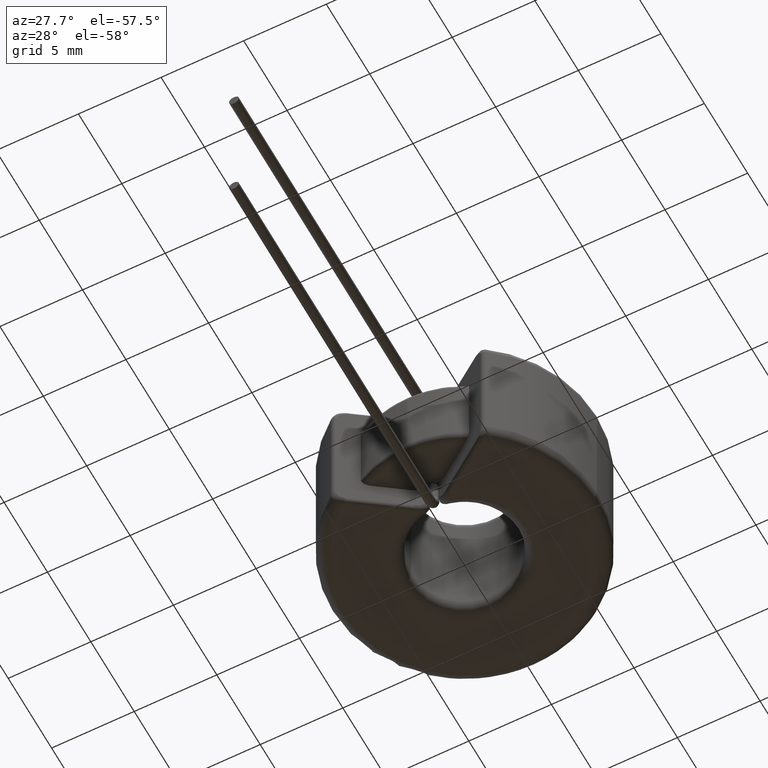
[diagram: clean part render]
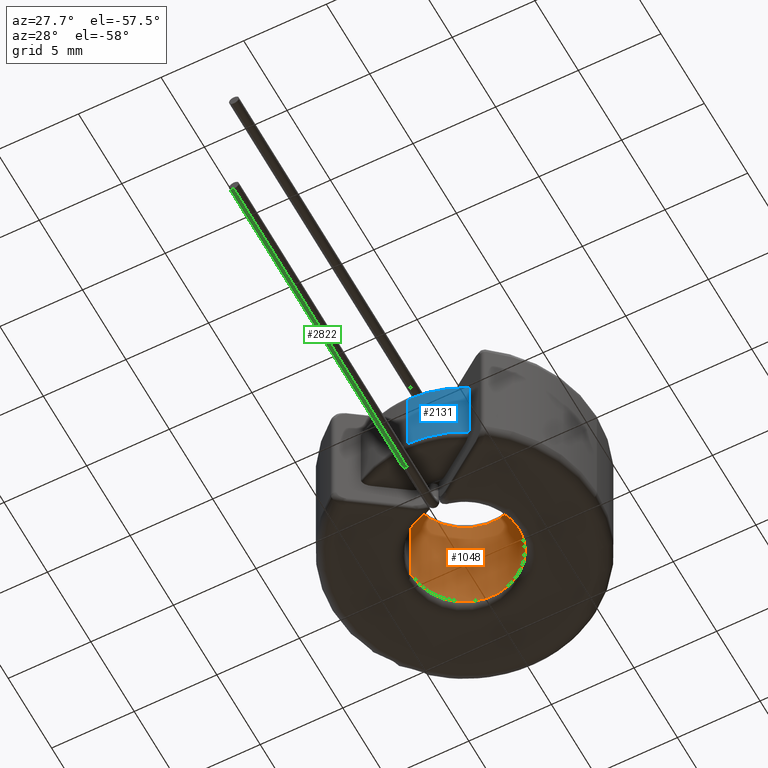
[diagram: same view with three faces highlighted in distinct colors, each labeled with its STEP entity id]
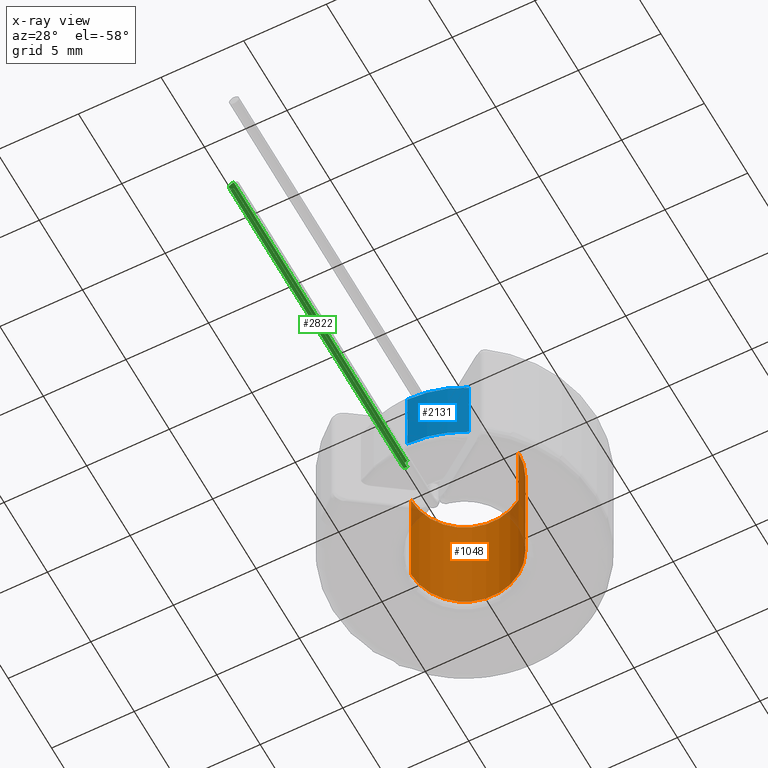
[diagram: x-ray of the same camera — body ghosted, the three highlighted faces saturated]
A machine part, auxiliary view with three faces highlighted in distinct colors.
The next image is the same camera in x-ray (body ghosted, the three faces saturated) — at least one of them is partly hidden behind the body in this view.
Their STEP definitions:

[orange] entity #1048 — the highlighted cylindrical surface (partial cylindrical patch) has radius 3.25 mm, axis along (-0, -0, -1).
#71 = CIRCLE ( 'NONE', #3897, 3.250000000000000444 ) ;
#217 = CARTESIAN_POINT ( 'NONE',  ( -3.250000000000000444, 0.0000000000000000000, -3.699999999999999289 ) ) ;
#514 = DIRECTION ( 'NONE',  ( -1.000000000000000000, 0.0000000000000000000, 0.0000000000000000000 ) ) ;
#583 = CARTESIAN_POINT ( 'NONE',  ( -3.250000000000000444, 0.0000000000000000000, 2.399999999999999911 ) ) ;
#668 = ORIENTED_EDGE ( 'NONE', *, *, #743, .T. ) ;
#743 = EDGE_CURVE ( 'NONE', #3099, #3209, #71, .T. ) ;
#815 = DIRECTION ( 'NONE',  ( 1.000000000000000000, 0.0000000000000000000, 0.0000000000000000000 ) ) ;
#828 = ORIENTED_EDGE ( 'NONE', *, *, #2869, .F. ) ;
#844 = CARTESIAN_POINT ( 'NONE',  ( 0.0000000000000000000, 0.0000000000000000000, -3.699999999999999289 ) ) ;
#999 = EDGE_CURVE ( 'NONE', #3697, #3412, #3691, .T. ) ;
#1002 = AXIS2_PLACEMENT_3D ( 'NONE', #3049, #3385, #3372 ) ;
#1048 = ADVANCED_FACE ( 'NONE', ( #3999 ), #1624, .F. ) ;
#1191 = CARTESIAN_POINT ( 'NONE',  ( 0.0000000000000000000, 0.0000000000000000000, 2.399999999999999911 ) ) ;
#1267 = CARTESIAN_POINT ( 'NONE',  ( 3.250000000000000444, 3.980102097228898231E-16, 2.399999999999999911 ) ) ;
#1521 = CARTESIAN_POINT ( 'NONE',  ( -3.250000000000000444, 0.0000000000000000000, 3.699999999999999734 ) ) ;
#1624 = CYLINDRICAL_SURFACE ( 'NONE', #3204, 3.250000000000000444 ) ;
#1855 = VECTOR ( 'NONE', #2202, 1000.000000000000000 ) ;
#1887 = CARTESIAN_POINT ( 'NONE',  ( 3.250000000000000444, 3.980102097228898231E-16, -3.699999999999999289 ) ) ;
#2005 = LINE ( 'NONE', #1267, #1855 ) ;
#2042 = EDGE_LOOP ( 'NONE', ( #828, #3569, #2485, #668 ) ) ;
#2202 = DIRECTION ( 'NONE',  ( -0.0000000000000000000, -0.0000000000000000000, -1.000000000000000000 ) ) ;
#2203 = LINE ( 'NONE', #583, #3011 ) ;
#2465 = DIRECTION ( 'NONE',  ( -0.0000000000000000000, -0.0000000000000000000, -1.000000000000000000 ) ) ;
#2485 = ORIENTED_EDGE ( 'NONE', *, *, #2548, .T. ) ;
#2548 = EDGE_CURVE ( 'NONE', #3412, #3099, #2203, .T. ) ;
#2869 = EDGE_CURVE ( 'NONE', #3697, #3209, #2005, .T. ) ;
#3011 = VECTOR ( 'NONE', #3850, 1000.000000000000000 ) ;
#3049 = CARTESIAN_POINT ( 'NONE',  ( 0.0000000000000000000, 0.0000000000000000000, 3.699999999999999734 ) ) ;
#3099 = VERTEX_POINT ( 'NONE', #217 ) ;
#3122 = DIRECTION ( 'NONE',  ( -0.0000000000000000000, -0.0000000000000000000, -1.000000000000000000 ) ) ;
#3204 = AXIS2_PLACEMENT_3D ( 'NONE', #1191, #2465, #514 ) ;
#3209 = VERTEX_POINT ( 'NONE', #1887 ) ;
#3372 = DIRECTION ( 'NONE',  ( 1.000000000000000000, 0.0000000000000000000, 0.0000000000000000000 ) ) ;
#3385 = DIRECTION ( 'NONE',  ( 0.0000000000000000000, 0.0000000000000000000, 1.000000000000000000 ) ) ;
#3412 = VERTEX_POINT ( 'NONE', #1521 ) ;
#3569 = ORIENTED_EDGE ( 'NONE', *, *, #999, .T. ) ;
#3691 = CIRCLE ( 'NONE', #1002, 3.250000000000000444 ) ;
#3697 = VERTEX_POINT ( 'NONE', #4174 ) ;
#3850 = DIRECTION ( 'NONE',  ( -0.0000000000000000000, -0.0000000000000000000, -1.000000000000000000 ) ) ;
#3897 = AXIS2_PLACEMENT_3D ( 'NONE', #844, #3122, #815 ) ;
#3999 = FACE_OUTER_BOUND ( 'NONE', #2042, .T. ) ;
#4174 = CARTESIAN_POINT ( 'NONE',  ( 3.250000000000000444, 3.980102097228898231E-16, 3.699999999999999734 ) ) ;

[blue] entity #2131 — the highlighted cylindrical surface (partial cylindrical patch) has radius 6.6 mm, axis along (-0, -0, 1).
#426 = CIRCLE ( 'NONE', #1677, 6.600000000000000533 ) ;
#427 = EDGE_CURVE ( 'NONE', #3476, #4071, #3244, .T. ) ;
#557 = DIRECTION ( 'NONE',  ( 0.0000000000000000000, 1.000000000000000000, 0.0000000000000000000 ) ) ;
#575 = DIRECTION ( 'NONE',  ( -0.0000000000000000000, -0.0000000000000000000, 1.000000000000000000 ) ) ;
#717 = CARTESIAN_POINT ( 'NONE',  ( 0.0000000000000000000, 0.0000000000000000000, 2.199999999999999734 ) ) ;
#1003 = VECTOR ( 'NONE', #2648, 1000.000000000000000 ) ;
#1039 = VERTEX_POINT ( 'NONE', #1831 ) ;
#1218 = CARTESIAN_POINT ( 'NONE',  ( 0.0000000000000000000, -6.600000000000000533, 2.199999999999999734 ) ) ;
#1489 = ORIENTED_EDGE ( 'NONE', *, *, #3291, .T. ) ;
#1585 = ORIENTED_EDGE ( 'NONE', *, *, #2071, .T. ) ;
#1677 = AXIS2_PLACEMENT_3D ( 'NONE', #717, #3284, #3605 ) ;
#1812 = EDGE_CURVE ( 'NONE', #3476, #2158, #1871, .T. ) ;
#1831 = CARTESIAN_POINT ( 'NONE',  ( 3.274501695702263682, -5.730413479395969567, 2.199999999999999734 ) ) ;
#1871 = LINE ( 'NONE', #4222, #1003 ) ;
#1977 = CARTESIAN_POINT ( 'NONE',  ( 0.0000000000000000000, 0.0000000000000000000, -2.200000000000000178 ) ) ;
#2071 = EDGE_CURVE ( 'NONE', #1039, #2158, #426, .T. ) ;
#2131 = ADVANCED_FACE ( 'NONE', ( #3225 ), #2466, .T. ) ;
#2158 = VERTEX_POINT ( 'NONE', #1218 ) ;
#2267 = CARTESIAN_POINT ( 'NONE',  ( 3.274501695702263682, -5.730413479395969567, -2.200000000000000178 ) ) ;
#2466 = CYLINDRICAL_SURFACE ( 'NONE', #2640, 6.600000000000000533 ) ;
#2640 = AXIS2_PLACEMENT_3D ( 'NONE', #2702, #3029, #3682 ) ;
#2648 = DIRECTION ( 'NONE',  ( -0.0000000000000000000, -0.0000000000000000000, 1.000000000000000000 ) ) ;
#2702 = CARTESIAN_POINT ( 'NONE',  ( 0.0000000000000000000, 0.0000000000000000000, -2.700000000000000178 ) ) ;
#2732 = DIRECTION ( 'NONE',  ( -0.0000000000000000000, -0.0000000000000000000, 1.000000000000000000 ) ) ;
#2757 = ORIENTED_EDGE ( 'NONE', *, *, #427, .T. ) ;
#2860 = AXIS2_PLACEMENT_3D ( 'NONE', #1977, #575, #557 ) ;
#3029 = DIRECTION ( 'NONE',  ( -0.0000000000000000000, -0.0000000000000000000, 1.000000000000000000 ) ) ;
#3071 = CARTESIAN_POINT ( 'NONE',  ( 3.274501695702262349, -5.730413479395967791, -2.700000000000000178 ) ) ;
#3101 = VECTOR ( 'NONE', #2732, 1000.000000000000000 ) ;
#3153 = EDGE_LOOP ( 'NONE', ( #3776, #2757, #1489, #1585 ) ) ;
#3175 = CARTESIAN_POINT ( 'NONE',  ( 0.0000000000000000000, -6.600000000000000533, -2.200000000000000178 ) ) ;
#3225 = FACE_OUTER_BOUND ( 'NONE', #3153, .T. ) ;
#3244 = CIRCLE ( 'NONE', #2860, 6.600000000000000533 ) ;
#3284 = DIRECTION ( 'NONE',  ( 0.0000000000000000000, 0.0000000000000000000, -1.000000000000000000 ) ) ;
#3291 = EDGE_CURVE ( 'NONE', #4071, #1039, #3295, .T. ) ;
#3295 = LINE ( 'NONE', #3071, #3101 ) ;
#3476 = VERTEX_POINT ( 'NONE', #3175 ) ;
#3605 = DIRECTION ( 'NONE',  ( 0.0000000000000000000, 1.000000000000000000, 0.0000000000000000000 ) ) ;
#3682 = DIRECTION ( 'NONE',  ( 0.0000000000000000000, -1.000000000000000000, 0.0000000000000000000 ) ) ;
#3776 = ORIENTED_EDGE ( 'NONE', *, *, #1812, .F. ) ;
#4071 = VERTEX_POINT ( 'NONE', #2267 ) ;
#4222 = CARTESIAN_POINT ( 'NONE',  ( 0.0000000000000000000, -6.600000000000000533, -2.700000000000000178 ) ) ;

[green] entity #2822 — the highlighted cylindrical surface (edge-blend (fillet) strip) has radius 0.3 mm, axis along (-0, 1, 0).
#76 = EDGE_CURVE ( 'NONE', #151, #3205, #950, .T. ) ;
#151 = VERTEX_POINT ( 'NONE', #3355 ) ;
#730 = ORIENTED_EDGE ( 'NONE', *, *, #3235, .T. ) ;
#737 = DIRECTION ( 'NONE',  ( 0.0000000000000000000, -1.000000000000000000, 7.727053345108274159E-17 ) ) ;
#765 = VECTOR ( 'NONE', #1592, 1000.000000000000000 ) ;
#800 = EDGE_CURVE ( 'NONE', #3205, #1666, #3187, .T. ) ;
#863 = LINE ( 'NONE', #1559, #765 ) ;
#950 = CIRCLE ( 'NONE', #1676, 0.2999999999999999334 ) ;
#1228 = CARTESIAN_POINT ( 'NONE',  ( 3.673940397442070592E-17, -26.59999999999999787, -4.550000000000002487 ) ) ;
#1337 = DIRECTION ( 'NONE',  ( -0.0000000000000000000, 1.000000000000000000, 0.0000000000000000000 ) ) ;
#1556 = VERTEX_POINT ( 'NONE', #4225 ) ;
#1559 = CARTESIAN_POINT ( 'NONE',  ( 0.0000000000000000000, -26.59999999999999787, -3.950000000000002842 ) ) ;
#1592 = DIRECTION ( 'NONE',  ( -0.0000000000000000000, 1.000000000000000000, 7.727053345108271693E-17 ) ) ;
#1666 = VERTEX_POINT ( 'NONE', #4098 ) ;
#1676 = AXIS2_PLACEMENT_3D ( 'NONE', #3966, #737, #4024 ) ;
#1714 = EDGE_CURVE ( 'NONE', #1666, #1556, #3322, .T. ) ;
#1727 = ORIENTED_EDGE ( 'NONE', *, *, #1714, .F. ) ;
#1898 = CARTESIAN_POINT ( 'NONE',  ( 3.673940397442058882E-17, -26.59999999999999787, -4.550000000000002487 ) ) ;
#1958 = AXIS2_PLACEMENT_3D ( 'NONE', #3790, #3174, #2885 ) ;
#2084 = AXIS2_PLACEMENT_3D ( 'NONE', #3914, #1337, #3591 ) ;
#2254 = ORIENTED_EDGE ( 'NONE', *, *, #76, .F. ) ;
#2822 = ADVANCED_FACE ( 'NONE', ( #3920 ), #3609, .T. ) ;
#2885 = DIRECTION ( 'NONE',  ( 0.0000000000000000000, 0.0000000000000000000, 1.000000000000000000 ) ) ;
#2982 = VECTOR ( 'NONE', #3527, 1000.000000000000000 ) ;
#3115 = ORIENTED_EDGE ( 'NONE', *, *, #800, .F. ) ;
#3174 = DIRECTION ( 'NONE',  ( -0.0000000000000000000, 1.000000000000000000, 7.727053345108271693E-17 ) ) ;
#3187 = LINE ( 'NONE', #1898, #2982 ) ;
#3205 = VERTEX_POINT ( 'NONE', #1228 ) ;
#3235 = EDGE_CURVE ( 'NONE', #151, #1556, #863, .T. ) ;
#3322 = CIRCLE ( 'NONE', #2084, 0.2999999999999999334 ) ;
#3355 = CARTESIAN_POINT ( 'NONE',  ( 0.0000000000000000000, -26.59999999999999787, -3.950000000000002842 ) ) ;
#3527 = DIRECTION ( 'NONE',  ( -0.0000000000000000000, 1.000000000000000000, 7.727053345108271693E-17 ) ) ;
#3591 = DIRECTION ( 'NONE',  ( 0.0000000000000000000, 0.0000000000000000000, 1.000000000000000000 ) ) ;
#3609 = CYLINDRICAL_SURFACE ( 'NONE', #1958, 0.2999999999999999334 ) ;
#3614 = EDGE_LOOP ( 'NONE', ( #3115, #2254, #730, #1727 ) ) ;
#3790 = CARTESIAN_POINT ( 'NONE',  ( 0.0000000000000000000, -26.59999999999999787, -4.250000000000002665 ) ) ;
#3914 = CARTESIAN_POINT ( 'NONE',  ( 0.0000000000000000000, -6.600000000000004974, -4.250000000000000888 ) ) ;
#3920 = FACE_OUTER_BOUND ( 'NONE', #3614, .T. ) ;
#3966 = CARTESIAN_POINT ( 'NONE',  ( 0.0000000000000000000, -26.59999999999999787, -4.250000000000002665 ) ) ;
#4024 = DIRECTION ( 'NONE',  ( 0.0000000000000000000, 0.0000000000000000000, -1.000000000000000000 ) ) ;
#4098 = CARTESIAN_POINT ( 'NONE',  ( 3.673940397442059498E-17, -6.600000000000004974, -4.550000000000000711 ) ) ;
#4225 = CARTESIAN_POINT ( 'NONE',  ( 0.0000000000000000000, -6.600000000000004974, -3.950000000000001066 ) ) ;